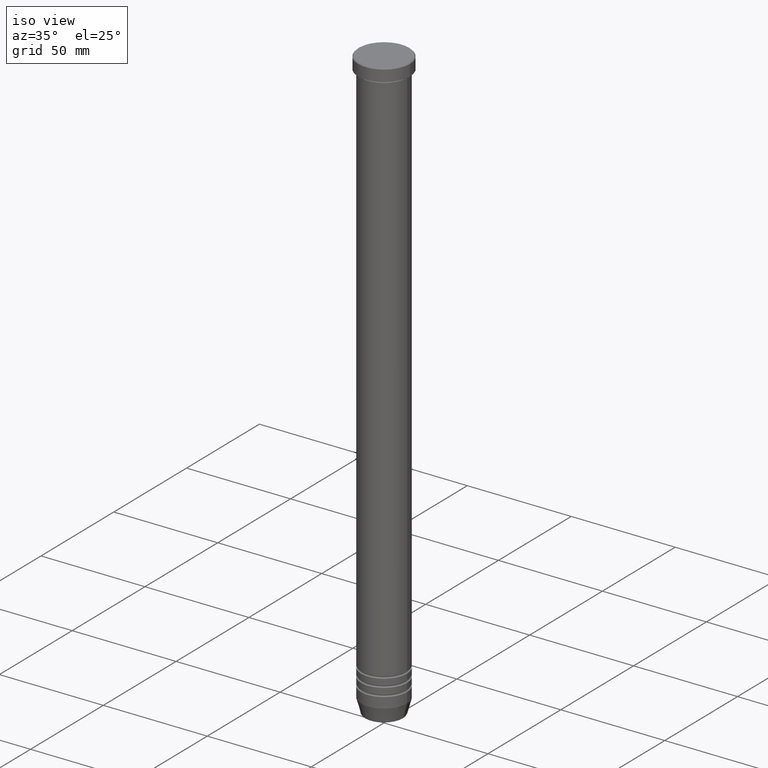
[diagram: clean part render]
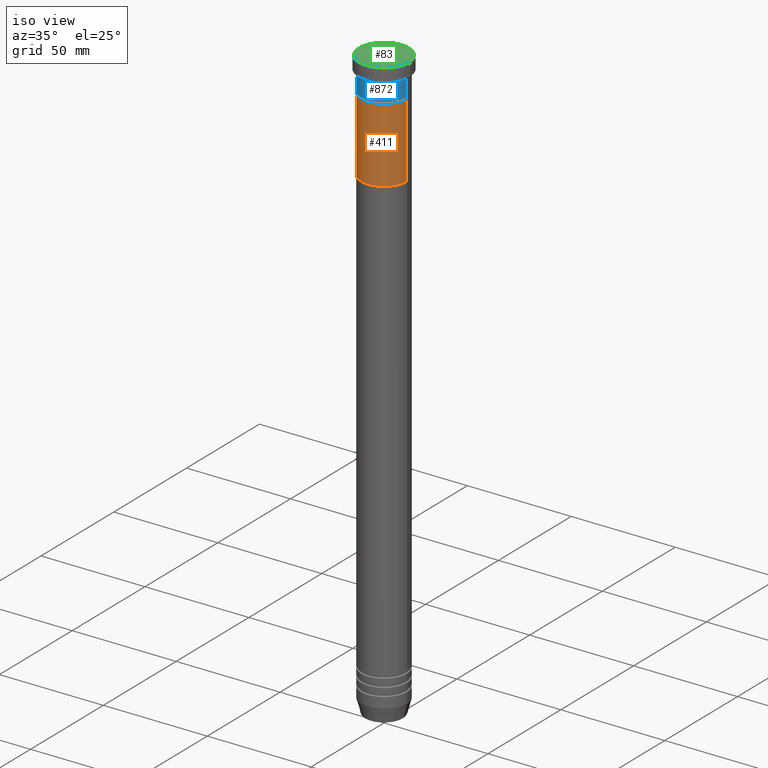
[diagram: same view with three faces highlighted in distinct colors, each labeled with its STEP entity id]
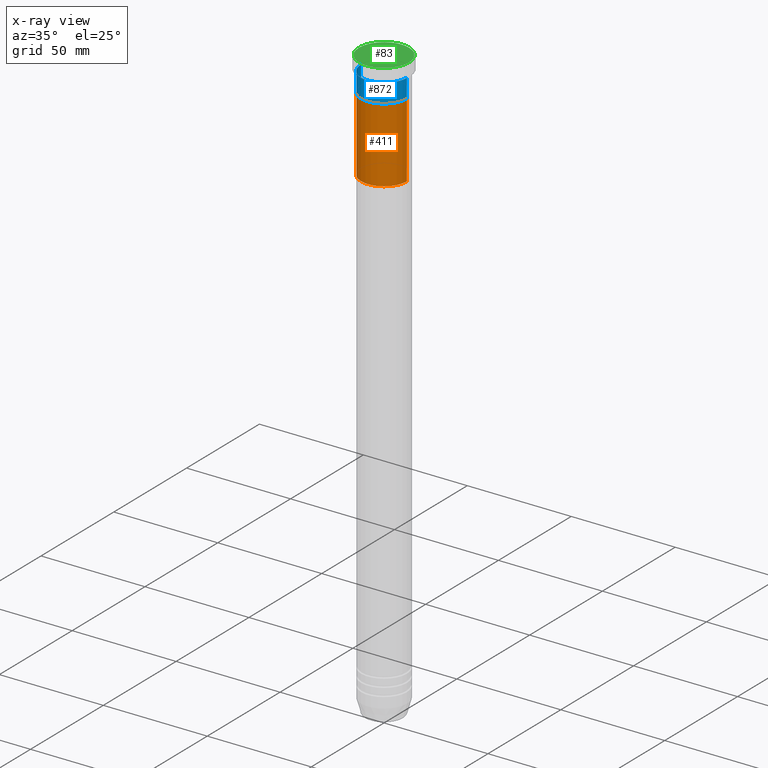
[diagram: x-ray of the same camera — body ghosted, the three highlighted faces saturated]
A machine part, iso view with three faces highlighted in distinct colors.
The next image is the same camera in x-ray (body ghosted, the three faces saturated) — at least one of them is partly hidden behind the body in this view.
Their STEP definitions:

[orange] entity #411 — the highlighted cylindrical surface (edge-blend (fillet) strip) has radius 11 mm, axis along (-0, -0, 1).
#19 = CARTESIAN_POINT ( 'NONE',  ( 0.000000000000000000, 0.000000000000000000, -16.00000000000000000 ) ) ;
#57 = VERTEX_POINT ( 'NONE', #301 ) ;
#77 = VERTEX_POINT ( 'NONE', #654 ) ;
#81 = VERTEX_POINT ( 'NONE', #390 ) ;
#88 = AXIS2_PLACEMENT_3D ( 'NONE', #19, #827, #225 ) ;
#169 = EDGE_CURVE ( 'NONE', #77, #57, #788, .T. ) ;
#225 = DIRECTION ( 'NONE',  ( -1.000000000000000000, 0.000000000000000000, 0.000000000000000000 ) ) ;
#289 = VECTOR ( 'NONE', #1040, 1000.000000000000000 ) ;
#301 = CARTESIAN_POINT ( 'NONE',  ( -11.00000000000000000, 1.347111479062088405E-15, -16.00000000000000000 ) ) ;
#341 = CARTESIAN_POINT ( 'NONE',  ( 0.000000000000000000, 0.000000000000000000, -52.00000000000000000 ) ) ;
#388 = ORIENTED_EDGE ( 'NONE', *, *, #1071, .F. ) ;
#390 = CARTESIAN_POINT ( 'NONE',  ( 11.00000000000000000, 0.000000000000000000, -52.00000000000000000 ) ) ;
#410 = LINE ( 'NONE', #969, #1041 ) ;
#411 = ADVANCED_FACE ( 'NONE', ( #772 ), #796, .T. ) ;
#436 = EDGE_CURVE ( 'NONE', #81, #1128, #410, .T. ) ;
#505 = DIRECTION ( 'NONE',  ( -0.000000000000000000, -0.000000000000000000, 1.000000000000000000 ) ) ;
#616 = DIRECTION ( 'NONE',  ( 1.000000000000000000, 0.000000000000000000, 0.000000000000000000 ) ) ;
#625 = AXIS2_PLACEMENT_3D ( 'NONE', #1137, #505, #616 ) ;
#654 = CARTESIAN_POINT ( 'NONE',  ( -11.00000000000000000, 1.347111479062088405E-15, -52.00000000000000000 ) ) ;
#772 = FACE_OUTER_BOUND ( 'NONE', #1052, .T. ) ;
#788 = LINE ( 'NONE', #886, #289 ) ;
#796 = CYLINDRICAL_SURFACE ( 'NONE', #625, 11.00000000000000000 ) ;
#827 = DIRECTION ( 'NONE',  ( 0.000000000000000000, 0.000000000000000000, -1.000000000000000000 ) ) ;
#849 = DIRECTION ( 'NONE',  ( -0.000000000000000000, -0.000000000000000000, 1.000000000000000000 ) ) ;
#886 = CARTESIAN_POINT ( 'NONE',  ( -11.00000000000000000, 1.347111479062088405E-15, -52.00000000000000000 ) ) ;
#892 = EDGE_CURVE ( 'NONE', #1128, #57, #948, .T. ) ;
#895 = ORIENTED_EDGE ( 'NONE', *, *, #169, .F. ) ;
#942 = DIRECTION ( 'NONE',  ( -1.000000000000000000, 0.000000000000000000, 0.000000000000000000 ) ) ;
#948 = CIRCLE ( 'NONE', #88, 11.00000000000000000 ) ;
#969 = CARTESIAN_POINT ( 'NONE',  ( 11.00000000000000000, 0.000000000000000000, -52.00000000000000000 ) ) ;
#983 = ORIENTED_EDGE ( 'NONE', *, *, #892, .T. ) ;
#993 = AXIS2_PLACEMENT_3D ( 'NONE', #341, #1120, #942 ) ;
#1012 = CIRCLE ( 'NONE', #993, 11.00000000000000000 ) ;
#1040 = DIRECTION ( 'NONE',  ( -0.000000000000000000, -0.000000000000000000, 1.000000000000000000 ) ) ;
#1041 = VECTOR ( 'NONE', #849, 1000.000000000000000 ) ;
#1052 = EDGE_LOOP ( 'NONE', ( #895, #388, #1055, #983 ) ) ;
#1055 = ORIENTED_EDGE ( 'NONE', *, *, #436, .T. ) ;
#1060 = CARTESIAN_POINT ( 'NONE',  ( 11.00000000000000000, 0.000000000000000000, -16.00000000000000000 ) ) ;
#1071 = EDGE_CURVE ( 'NONE', #81, #77, #1012, .T. ) ;
#1120 = DIRECTION ( 'NONE',  ( 0.000000000000000000, 0.000000000000000000, -1.000000000000000000 ) ) ;
#1128 = VERTEX_POINT ( 'NONE', #1060 ) ;
#1137 = CARTESIAN_POINT ( 'NONE',  ( 0.000000000000000000, 0.000000000000000000, -52.00000000000000000 ) ) ;

[blue] entity #872 — the highlighted cylindrical surface (edge-blend (fillet) strip) has radius 11 mm, axis along (-0, -0, 1).
#1 = CARTESIAN_POINT ( 'NONE',  ( 11.00000000000000000, 0.000000000000000000, 0.000000000000000000 ) ) ;
#12 = VERTEX_POINT ( 'NONE', #1035 ) ;
#28 = LINE ( 'NONE', #1014, #610 ) ;
#48 = DIRECTION ( 'NONE',  ( -0.000000000000000000, -0.000000000000000000, 1.000000000000000000 ) ) ;
#50 = FACE_OUTER_BOUND ( 'NONE', #277, .T. ) ;
#61 = DIRECTION ( 'NONE',  ( -0.000000000000000000, -0.000000000000000000, 1.000000000000000000 ) ) ;
#145 = CARTESIAN_POINT ( 'NONE',  ( 0.000000000000000000, 0.000000000000000000, -6.999999999999999112 ) ) ;
#155 = CIRCLE ( 'NONE', #856, 11.00000000000000000 ) ;
#171 = VECTOR ( 'NONE', #363, 1000.000000000000000 ) ;
#187 = CARTESIAN_POINT ( 'NONE',  ( 0.000000000000000000, 0.000000000000000000, -16.00000000000000000 ) ) ;
#192 = DIRECTION ( 'NONE',  ( 1.000000000000000000, 0.000000000000000000, 0.000000000000000000 ) ) ;
#228 = EDGE_CURVE ( 'NONE', #1047, #12, #811, .T. ) ;
#231 = CYLINDRICAL_SURFACE ( 'NONE', #479, 11.00000000000000000 ) ;
#232 = ORIENTED_EDGE ( 'NONE', *, *, #1009, .F. ) ;
#254 = CARTESIAN_POINT ( 'NONE',  ( 11.00000000000000000, 0.000000000000000000, -16.00000000000000000 ) ) ;
#277 = EDGE_LOOP ( 'NONE', ( #232, #292, #1056, #287 ) ) ;
#279 = VERTEX_POINT ( 'NONE', #909 ) ;
#287 = ORIENTED_EDGE ( 'NONE', *, *, #691, .F. ) ;
#292 = ORIENTED_EDGE ( 'NONE', *, *, #778, .T. ) ;
#363 = DIRECTION ( 'NONE',  ( -0.000000000000000000, -0.000000000000000000, 1.000000000000000000 ) ) ;
#479 = AXIS2_PLACEMENT_3D ( 'NONE', #589, #826, #922 ) ;
#589 = CARTESIAN_POINT ( 'NONE',  ( 0.000000000000000000, 0.000000000000000000, 0.000000000000000000 ) ) ;
#610 = VECTOR ( 'NONE', #48, 1000.000000000000000 ) ;
#683 = CIRCLE ( 'NONE', #721, 11.00000000000000000 ) ;
#691 = EDGE_CURVE ( 'NONE', #848, #12, #683, .T. ) ;
#721 = AXIS2_PLACEMENT_3D ( 'NONE', #145, #61, #1119 ) ;
#778 = EDGE_CURVE ( 'NONE', #279, #1047, #155, .T. ) ;
#811 = LINE ( 'NONE', #1, #171 ) ;
#826 = DIRECTION ( 'NONE',  ( -0.000000000000000000, -0.000000000000000000, 1.000000000000000000 ) ) ;
#848 = VERTEX_POINT ( 'NONE', #1053 ) ;
#856 = AXIS2_PLACEMENT_3D ( 'NONE', #187, #981, #192 ) ;
#872 = ADVANCED_FACE ( 'NONE', ( #50 ), #231, .T. ) ;
#909 = CARTESIAN_POINT ( 'NONE',  ( -11.00000000000000000, 1.347111479062088405E-15, -16.00000000000000000 ) ) ;
#922 = DIRECTION ( 'NONE',  ( 1.000000000000000000, 0.000000000000000000, 0.000000000000000000 ) ) ;
#981 = DIRECTION ( 'NONE',  ( -0.000000000000000000, -0.000000000000000000, 1.000000000000000000 ) ) ;
#1009 = EDGE_CURVE ( 'NONE', #279, #848, #28, .T. ) ;
#1014 = CARTESIAN_POINT ( 'NONE',  ( -11.00000000000000000, 1.347111479062088405E-15, 0.000000000000000000 ) ) ;
#1035 = CARTESIAN_POINT ( 'NONE',  ( 11.00000000000000000, 0.000000000000000000, -6.999999999999999112 ) ) ;
#1047 = VERTEX_POINT ( 'NONE', #254 ) ;
#1053 = CARTESIAN_POINT ( 'NONE',  ( -11.00000000000000000, 1.347111479062088405E-15, -6.999999999999999112 ) ) ;
#1056 = ORIENTED_EDGE ( 'NONE', *, *, #228, .T. ) ;
#1119 = DIRECTION ( 'NONE',  ( 1.000000000000000000, 0.000000000000000000, 0.000000000000000000 ) ) ;

[green] entity #83 — the highlighted planar face has unit normal (0, -0, 1).
#34 = DIRECTION ( 'NONE',  ( 1.000000000000000000, 0.000000000000000000, 0.000000000000000000 ) ) ;
#83 = ADVANCED_FACE ( 'NONE', ( #224 ), #934, .T. ) ;
#104 = CARTESIAN_POINT ( 'NONE',  ( -12.00000000000000355, 0.000000000000000000, 0.000000000000000000 ) ) ;
#123 = CIRCLE ( 'NONE', #384, 12.00000000000000355 ) ;
#224 = FACE_OUTER_BOUND ( 'NONE', #821, .T. ) ;
#238 = AXIS2_PLACEMENT_3D ( 'NONE', #582, #1001, #34 ) ;
#319 = VERTEX_POINT ( 'NONE', #104 ) ;
#329 = CARTESIAN_POINT ( 'NONE',  ( 0.000000000000000000, 0.000000000000000000, 0.000000000000000000 ) ) ;
#345 = VERTEX_POINT ( 'NONE', #1070 ) ;
#384 = AXIS2_PLACEMENT_3D ( 'NONE', #329, #682, #781 ) ;
#467 = DIRECTION ( 'NONE',  ( -0.000000000000000000, -0.000000000000000000, 1.000000000000000000 ) ) ;
#472 = CARTESIAN_POINT ( 'NONE',  ( 0.000000000000000000, 0.000000000000000000, 0.000000000000000000 ) ) ;
#562 = ORIENTED_EDGE ( 'NONE', *, *, #984, .T. ) ;
#582 = CARTESIAN_POINT ( 'NONE',  ( 0.000000000000000000, 0.000000000000000000, 0.000000000000000000 ) ) ;
#600 = AXIS2_PLACEMENT_3D ( 'NONE', #472, #467, #1100 ) ;
#623 = EDGE_CURVE ( 'NONE', #319, #345, #123, .T. ) ;
#682 = DIRECTION ( 'NONE',  ( -0.000000000000000000, -0.000000000000000000, 1.000000000000000000 ) ) ;
#692 = ORIENTED_EDGE ( 'NONE', *, *, #623, .T. ) ;
#781 = DIRECTION ( 'NONE',  ( 1.000000000000000000, 0.000000000000000000, 0.000000000000000000 ) ) ;
#821 = EDGE_LOOP ( 'NONE', ( #692, #562 ) ) ;
#934 = PLANE ( 'NONE',  #238 ) ;
#984 = EDGE_CURVE ( 'NONE', #345, #319, #1118, .T. ) ;
#1001 = DIRECTION ( 'NONE',  ( 0.000000000000000000, -0.000000000000000000, 1.000000000000000000 ) ) ;
#1070 = CARTESIAN_POINT ( 'NONE',  ( 12.00000000000000355, 1.500192328955507734E-15, 0.000000000000000000 ) ) ;
#1100 = DIRECTION ( 'NONE',  ( 1.000000000000000000, 0.000000000000000000, 0.000000000000000000 ) ) ;
#1118 = CIRCLE ( 'NONE', #600, 12.00000000000000355 ) ;